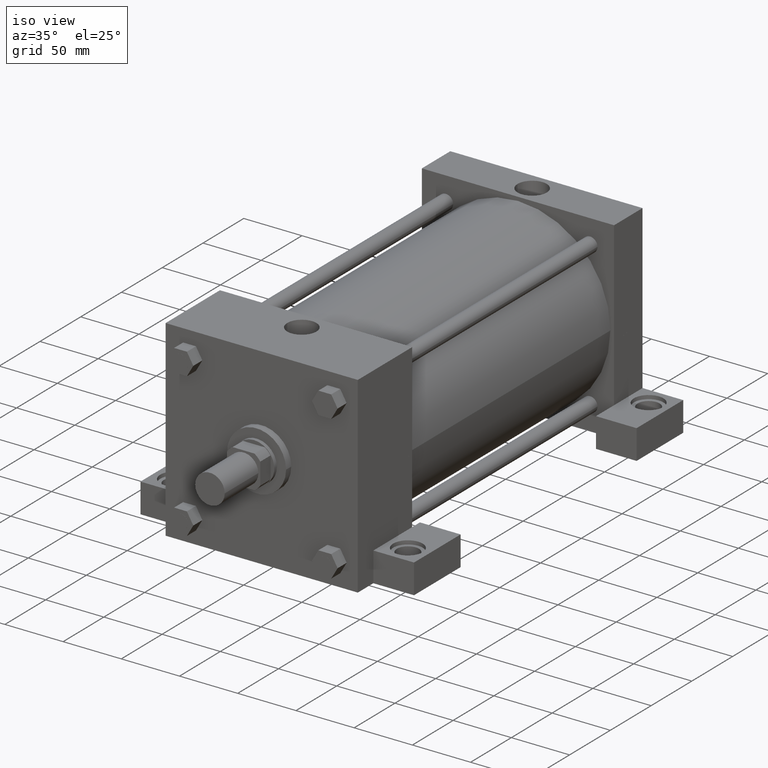
[diagram: clean part render]
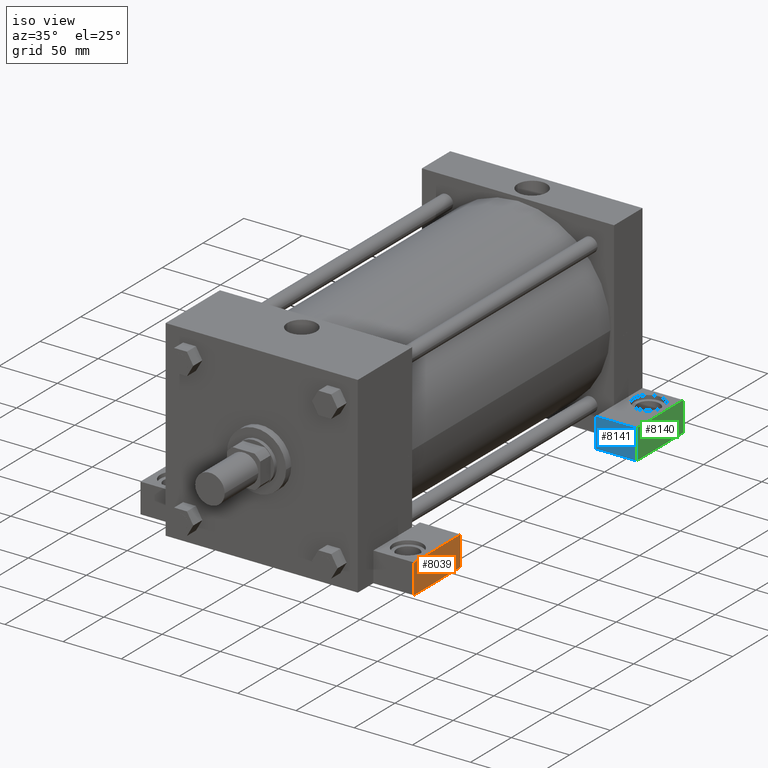
[diagram: same view with three faces highlighted in distinct colors, each labeled with its STEP entity id]
A machine part, iso view with three faces highlighted in distinct colors.
Their STEP definitions:

[orange] entity #8039 — the highlighted planar face has unit normal (-1, 0, 0).
#1688=EDGE_CURVE('',#1693,#1694,#1689,.T.);
#1689=LINE('',#1690,#1691);
#1690=CARTESIAN_POINT('',(1.174750000E+002,4.127500000E+001,-5.715000000E+001));
#1691=VECTOR('',#1692,1.0E+000);
#1692=DIRECTION('',(0.0E+000,1.0E+000,0.0E+000));
#1693=VERTEX_POINT('',#1695);
#1694=VERTEX_POINT('',#1696);
#1695=CARTESIAN_POINT('',(1.174750000E+002,4.127500000E+001,-5.715000000E+001));
#1696=CARTESIAN_POINT('',(1.174750000E+002,9.842500000E+001,-5.715000000E+001));
#1736=VERTEX_POINT('',#1738);
#1738=CARTESIAN_POINT('',(1.174750000E+002,4.127500000E+001,-8.255000000E+001));
#1739=EDGE_CURVE('',#1693,#1736,#1740,.T.);
#1740=LINE('',#1741,#1742);
#1741=CARTESIAN_POINT('',(1.174750000E+002,4.127500000E+001,-5.715000000E+001));
#1742=VECTOR('',#1743,1.0E+000);
#1743=DIRECTION('',(0.0E+000,0.0E+000,-1.0E+000));
#1765=VERTEX_POINT('',#1767);
#1767=CARTESIAN_POINT('',(1.174750000E+002,9.842500000E+001,-8.255000000E+001));
#1774=EDGE_CURVE('',#1694,#1765,#1775,.T.);
#1775=LINE('',#1776,#1777);
#1776=CARTESIAN_POINT('',(1.174750000E+002,9.842500000E+001,-5.715000000E+001));
#1777=VECTOR('',#1778,1.0E+000);
#1778=DIRECTION('',(0.0E+000,0.0E+000,-1.0E+000));
#1784=FACE_OUTER_BOUND('',#1785,.T.);
#1785=EDGE_LOOP('',(#1786,#1787,#1788,#1789));
#1786=ORIENTED_EDGE('',*,*,#1790,.T.);
#1787=ORIENTED_EDGE('',*,*,#1774,.F.);
#1788=ORIENTED_EDGE('',*,*,#1688,.F.);
#1789=ORIENTED_EDGE('',*,*,#1739,.T.);
#1790=EDGE_CURVE('',#1736,#1765,#1791,.T.);
#1791=LINE('',#1792,#1793);
#1792=CARTESIAN_POINT('',(1.174750000E+002,4.127500000E+001,-8.255000000E+001));
#1793=VECTOR('',#1794,1.0E+000);
#1794=DIRECTION('',(0.0E+000,1.0E+000,0.0E+000));
#1795=PLANE('',#1796);
#1796=AXIS2_PLACEMENT_3D('',#1797,#1798,#1799);
#1797=CARTESIAN_POINT('',(1.174750000E+002,4.127500000E+001,-5.715000000E+001));
#1798=DIRECTION('',(-1.0E+000,0.0E+000,0.0E+000));
#1799=DIRECTION('',(0.0E+000,0.0E+000,1.0E+000));
#8039=ADVANCED_FACE('',(#1784),#1795,.F.);

[blue] entity #8141 — the highlighted planar face has unit normal (0, 1, 0).
#5314=LINE('',#5315,#5316);
#5315=CARTESIAN_POINT('',(1.174750000E+002,3.143250000E+002,-8.255000000E+001));
#5316=VECTOR('',#5317,1.0E+000);
#5317=DIRECTION('',(-1.0E+000,0.0E+000,0.0E+000));
#5339=VERTEX_POINT('',#5340);
#5340=CARTESIAN_POINT('',(1.174750000E+002,3.143250000E+002,-8.255000000E+001));
#5341=EDGE_CURVE('',#5339,#5342,#5314,.T.);
#5342=VERTEX_POINT('',#5343);
#5343=CARTESIAN_POINT('',(8.255000000E+001,3.143250000E+002,-8.255000000E+001));
#5381=VERTEX_POINT('',#5382);
#5382=CARTESIAN_POINT('',(8.255000000E+001,3.143250000E+002,-5.715000000E+001));
#5383=EDGE_CURVE('',#5381,#5388,#5384,.T.);
#5384=LINE('',#5385,#5386);
#5385=CARTESIAN_POINT('',(8.255000000E+001,3.143250000E+002,-5.715000000E+001));
#5386=VECTOR('',#5387,1.0E+000);
#5387=DIRECTION('',(1.0E+000,0.0E+000,0.0E+000));
#5388=VERTEX_POINT('',#5389);
#5389=CARTESIAN_POINT('',(1.174750000E+002,3.143250000E+002,-5.715000000E+001));
#5413=EDGE_CURVE('',#5388,#5339,#5414,.T.);
#5414=LINE('',#5415,#5416);
#5415=CARTESIAN_POINT('',(1.174750000E+002,3.143250000E+002,-5.715000000E+001));
#5416=VECTOR('',#5417,1.0E+000);
#5417=DIRECTION('',(0.0E+000,0.0E+000,-1.0E+000));
#5428=FACE_OUTER_BOUND('',#5429,.T.);
#5429=EDGE_LOOP('',(#5430,#5431,#5432,#5433));
#5430=ORIENTED_EDGE('',*,*,#5434,.T.);
#5431=ORIENTED_EDGE('',*,*,#5341,.F.);
#5432=ORIENTED_EDGE('',*,*,#5413,.F.);
#5433=ORIENTED_EDGE('',*,*,#5383,.F.);
#5434=EDGE_CURVE('',#5381,#5342,#5435,.T.);
#5435=LINE('',#5436,#5437);
#5436=CARTESIAN_POINT('',(8.255000000E+001,3.143250000E+002,-5.715000000E+001));
#5437=VECTOR('',#5438,1.0E+000);
#5438=DIRECTION('',(0.0E+000,0.0E+000,-1.0E+000));
#5439=PLANE('',#5440);
#5440=AXIS2_PLACEMENT_3D('',#5441,#5442,#5443);
#5441=CARTESIAN_POINT('',(8.255000000E+001,3.143250000E+002,-5.715000000E+001));
#5442=DIRECTION('',(0.0E+000,1.0E+000,0.0E+000));
#5443=DIRECTION('',(0.0E+000,0.0E+000,1.0E+000));
#8141=ADVANCED_FACE('',(#5428),#5439,.F.);

[green] entity #8140 — the highlighted planar face has unit normal (-1, 0, 0).
#5332=VERTEX_POINT('',#5333);
#5333=CARTESIAN_POINT('',(1.174750000E+002,3.714750000E+002,-8.255000000E+001));
#5334=EDGE_CURVE('',#5339,#5332,#5335,.T.);
#5335=LINE('',#5336,#5337);
#5336=CARTESIAN_POINT('',(1.174750000E+002,3.143250000E+002,-8.255000000E+001));
#5337=VECTOR('',#5338,1.0E+000);
#5338=DIRECTION('',(0.0E+000,1.0E+000,0.0E+000));
#5339=VERTEX_POINT('',#5340);
#5340=CARTESIAN_POINT('',(1.174750000E+002,3.143250000E+002,-8.255000000E+001));
#5388=VERTEX_POINT('',#5389);
#5389=CARTESIAN_POINT('',(1.174750000E+002,3.143250000E+002,-5.715000000E+001));
#5390=EDGE_CURVE('',#5388,#5395,#5391,.T.);
#5391=LINE('',#5392,#5393);
#5392=CARTESIAN_POINT('',(1.174750000E+002,3.143250000E+002,-5.715000000E+001));
#5393=VECTOR('',#5394,1.0E+000);
#5394=DIRECTION('',(0.0E+000,1.0E+000,0.0E+000));
#5395=VERTEX_POINT('',#5396);
#5396=CARTESIAN_POINT('',(1.174750000E+002,3.714750000E+002,-5.715000000E+001));
#5407=FACE_OUTER_BOUND('',#5408,.T.);
#5408=EDGE_LOOP('',(#5409,#5410,#5411,#5412));
#5409=ORIENTED_EDGE('',*,*,#5413,.T.);
#5410=ORIENTED_EDGE('',*,*,#5334,.T.);
#5411=ORIENTED_EDGE('',*,*,#5418,.F.);
#5412=ORIENTED_EDGE('',*,*,#5390,.F.);
#5413=EDGE_CURVE('',#5388,#5339,#5414,.T.);
#5414=LINE('',#5415,#5416);
#5415=CARTESIAN_POINT('',(1.174750000E+002,3.143250000E+002,-5.715000000E+001));
#5416=VECTOR('',#5417,1.0E+000);
#5417=DIRECTION('',(0.0E+000,0.0E+000,-1.0E+000));
#5418=EDGE_CURVE('',#5395,#5332,#5419,.T.);
#5419=LINE('',#5420,#5421);
#5420=CARTESIAN_POINT('',(1.174750000E+002,3.714750000E+002,-5.715000000E+001));
#5421=VECTOR('',#5422,1.0E+000);
#5422=DIRECTION('',(0.0E+000,0.0E+000,-1.0E+000));
#5423=PLANE('',#5424);
#5424=AXIS2_PLACEMENT_3D('',#5425,#5426,#5427);
#5425=CARTESIAN_POINT('',(1.174750000E+002,3.143250000E+002,-5.715000000E+001));
#5426=DIRECTION('',(-1.0E+000,0.0E+000,0.0E+000));
#5427=DIRECTION('',(0.0E+000,0.0E+000,1.0E+000));
#8140=ADVANCED_FACE('',(#5407),#5423,.F.);